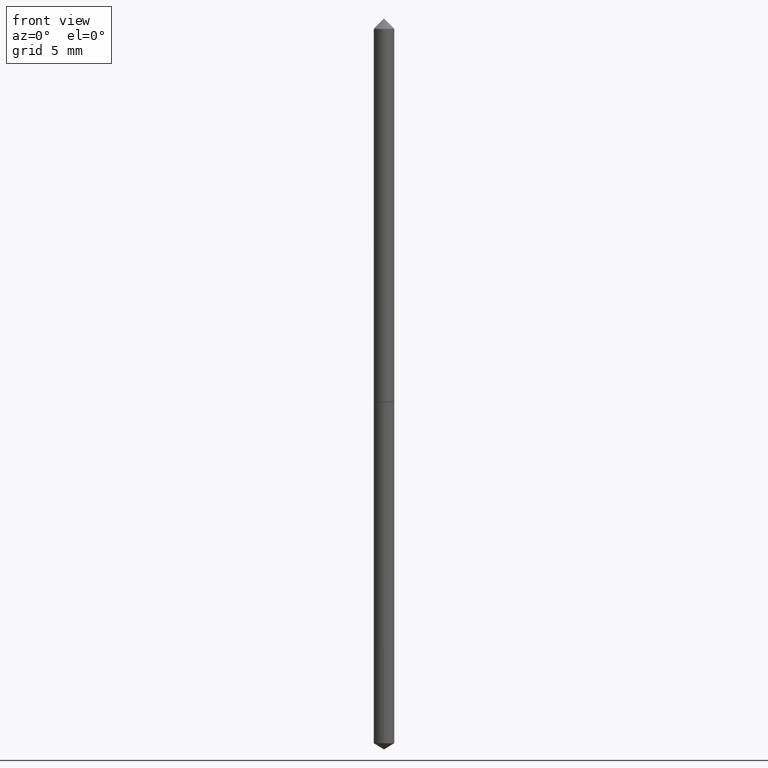
[diagram: clean part render]
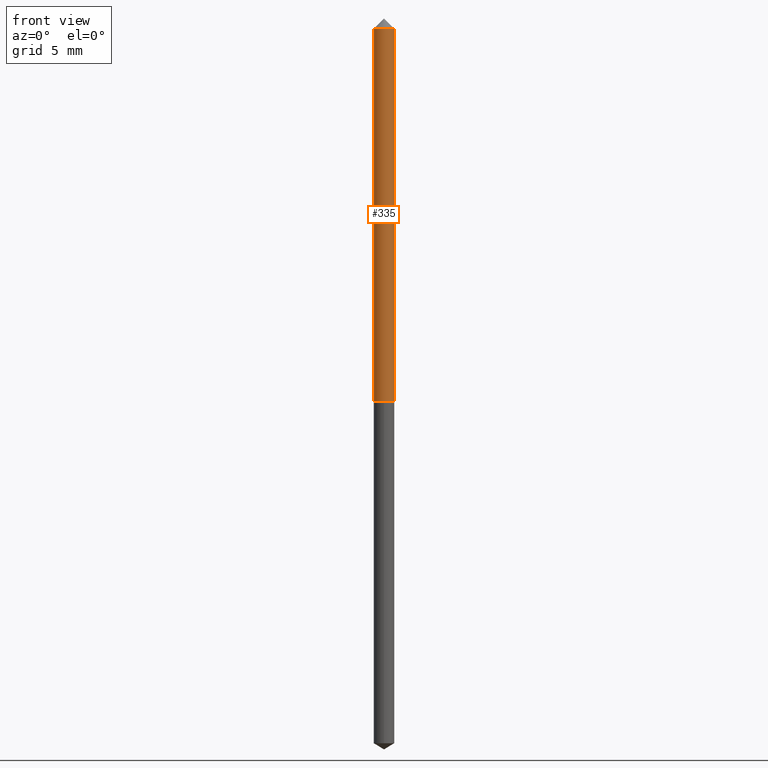
[diagram: same view with one face highlighted and labeled with its STEP entity id]
A machine part, front view. The second image highlights one B-rep face of the part: STEP entity #335.
In plain terms, the highlighted cylindrical surface (edge-blend (fillet) strip) has radius 0.5334 mm, axis along (-0, 0, 1).
Its self-contained STEP definition (entity closure, byte-faithful):
#3 = CIRCLE ( 'NONE', #35, 0.02100000000000000824 ) ;
#13 = FACE_OUTER_BOUND ( 'NONE', #191, .T. ) ;
#16 = VECTOR ( 'NONE', #219, 39.37007874015748143 ) ;
#35 = AXIS2_PLACEMENT_3D ( 'NONE', #134, #157, #263 ) ;
#38 = VERTEX_POINT ( 'NONE', #190 ) ;
#43 = ORIENTED_EDGE ( 'NONE', *, *, #90, .F. ) ;
#69 = EDGE_CURVE ( 'NONE', #38, #346, #109, .T. ) ;
#82 = CIRCLE ( 'NONE', #286, 0.02100000000000010192 ) ;
#85 = CARTESIAN_POINT ( 'NONE',  ( 0.02100000000000000824, -2.557510080702606759E-16, -0.03125000000000020817 ) ) ;
#90 = EDGE_CURVE ( 'NONE', #186, #99, #221, .T. ) ;
#99 = VERTEX_POINT ( 'NONE', #168 ) ;
#107 = ORIENTED_EDGE ( 'NONE', *, *, #274, .F. ) ;
#109 = LINE ( 'NONE', #360, #16 ) ;
#111 = DIRECTION ( 'NONE',  ( 1.000000000000000000, -6.982962677686267499E-15, 4.876176775795936353E-29 ) ) ;
#115 = EDGE_CURVE ( 'NONE', #186, #38, #82, .T. ) ;
#128 = ORIENTED_EDGE ( 'NONE', *, *, #115, .T. ) ;
#134 = CARTESIAN_POINT ( 'NONE',  ( 7.642090019328602662E-31, -1.091087918388490267E-16, -0.03125000000000020817 ) ) ;
#144 = AXIS2_PLACEMENT_3D ( 'NONE', #354, #293, #111 ) ;
#147 = CARTESIAN_POINT ( 'NONE',  ( -0.02100000000000010192, -2.614293505184728629E-15, -0.7915000000000002034 ) ) ;
#157 = DIRECTION ( 'NONE',  ( -2.445468806185136597E-29, 3.491481338843145583E-15, 1.000000000000000000 ) ) ;
#168 = CARTESIAN_POINT ( 'NONE',  ( -0.02100000000000000824, -1.287094161256977096E-15, -0.03125000000000020817 ) ) ;
#171 = DIRECTION ( 'NONE',  ( -2.445468806185136877E-29, 3.491481338843145188E-15, 1.000000000000000000 ) ) ;
#186 = VERTEX_POINT ( 'NONE', #147 ) ;
#190 = CARTESIAN_POINT ( 'NONE',  ( 0.02100000000000010192, -2.910149695925762806E-15, -0.7915000000000002034 ) ) ;
#191 = EDGE_LOOP ( 'NONE', ( #43, #128, #287, #107 ) ) ;
#200 = CARTESIAN_POINT ( 'NONE',  ( -0.02100000000000005335, 1.492139745096214181E-16, -1.032976368953532787E-30 ) ) ;
#219 = DIRECTION ( 'NONE',  ( -2.445468806185136877E-29, 3.491481338843145188E-15, 1.000000000000000000 ) ) ;
#221 = LINE ( 'NONE', #200, #363 ) ;
#240 = CYLINDRICAL_SURFACE ( 'NONE', #144, 0.02100000000000005335 ) ;
#263 = DIRECTION ( 'NONE',  ( 1.000000000000000000, -6.982962677686265922E-15, 0.000000000000000000 ) ) ;
#269 = CARTESIAN_POINT ( 'NONE',  ( 1.935588560095536193E-29, -2.763507479694350590E-15, -0.7915000000000002034 ) ) ;
#274 = EDGE_CURVE ( 'NONE', #99, #346, #3, .T. ) ;
#282 = DIRECTION ( 'NONE',  ( -2.445468806185136597E-29, 3.491481338843145583E-15, 1.000000000000000000 ) ) ;
#286 = AXIS2_PLACEMENT_3D ( 'NONE', #269, #282, #319 ) ;
#287 = ORIENTED_EDGE ( 'NONE', *, *, #69, .T. ) ;
#293 = DIRECTION ( 'NONE',  ( -2.445468806185136597E-29, 3.491481338843145583E-15, 1.000000000000000000 ) ) ;
#319 = DIRECTION ( 'NONE',  ( 1.000000000000000000, -6.982962677686276177E-15, 0.000000000000000000 ) ) ;
#335 = ADVANCED_FACE ( 'NONE', ( #13 ), #240, .T. ) ;
#346 = VERTEX_POINT ( 'NONE', #85 ) ;
#354 = CARTESIAN_POINT ( 'NONE',  ( 0.000000000000000000, 0.000000000000000000, 0.000000000000000000 ) ) ;
#360 = CARTESIAN_POINT ( 'NONE',  ( 0.02100000000000005335, -1.466422162314119944E-16, 1.023997122917149277E-30 ) ) ;
#363 = VECTOR ( 'NONE', #171, 39.37007874015748143 ) ;